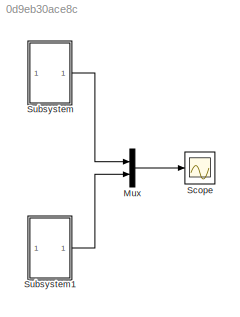
MODEL slx_0d9eb30ace8c
KIND model
CONFIG AbsTol = auto
CONFIG EnableMultiTasking = off
CONFIG FixedStep = auto
CONFIG MaxStep = auto
CONFIG MinStep = auto
CONFIG RelTol = 1e-3
CONFIG SampleTimeConstraint = Unconstrained
CONFIG SolverName = VariableStepAuto
CONFIG StartTime = 0.0
CONFIG StopTime = 0.003
BLOCK [Mux] Mux
  DisplayOption = bar
  Inputs = 2
BLOCK [Scope] Scope
  Floating = off
  NumInputPorts = 1
  ScopeSpecificationString = Simulink.scopes.TimeScopeBlockCfg('CurrentConfiguration', extmgr.ConfigurationSet(extmgr.Configuration('Core','General UI',true),extmgr.Configuration('Core','Source UI',true),extmgr.Configuration('Sources','WiredSimulink',true),extmgr.Configuration('Visuals','Time Domain',true,'SerializedDisplays',{struct('MinYLimReal','-0.45118','MaxYLimReal','4.06059','YLabelReal','','MinYLimMag','0.00000','MaxY...<+1402ch>
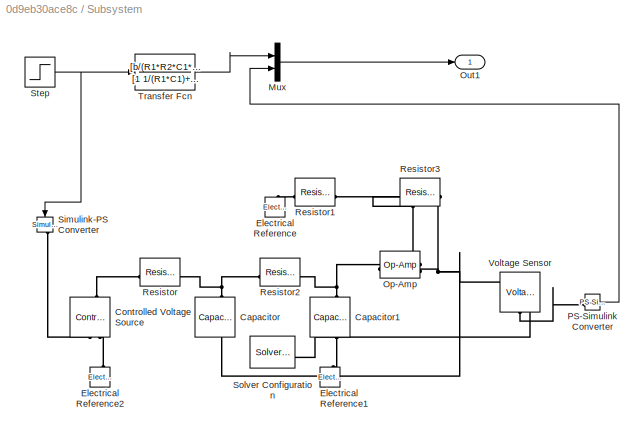
BLOCK [SubSystem] Subsystem
BLOCK [Reference] Subsystem/Capacitor  REF=fl_lib/Electrical/Electrical Elements/Capacitor
  NameLocation = right
  SourceBlock = fl_lib/Electrical/Electrical Elements/Capacitor
  SourceType = Capacitor
BLOCK [Reference] Subsystem/Capacitor1  REF=fl_lib/Electrical/Electrical Elements/Capacitor
  NameLocation = left
  SourceBlock = fl_lib/Electrical/Electrical Elements/Capacitor
  SourceType = Capacitor
BLOCK [Reference] Subsystem/Controlled Voltage Source  REF=fl_lib/Electrical/Electrical Sources/Controlled Voltage
Source
  NameLocation = right
  SourceBlock = fl_lib/Electrical/Electrical Sources/Controlled Voltage\nSource
  SourceType = Controlled Voltage\nSource
BLOCK [Reference] Subsystem/Electrical Reference  REF=fl_lib/Electrical/Electrical Elements/Electrical Reference
  NameLocation = right
  SourceBlock = fl_lib/Electrical/Electrical Elements/Electrical Reference
  SourceType = Electrical Reference
BLOCK [Reference] Subsystem/Electrical Reference1  REF=fl_lib/Electrical/Electrical Elements/Electrical Reference
  NameLocation = right
  SourceBlock = fl_lib/Electrical/Electrical Elements/Electrical Reference
  SourceType = Electrical Reference
BLOCK [Reference] Subsystem/Electrical Reference2  REF=fl_lib/Electrical/Electrical Elements/Electrical Reference
  NameLocation = right
  SourceBlock = fl_lib/Electrical/Electrical Elements/Electrical Reference
  SourceType = Electrical Reference
BLOCK [Mux] Subsystem/Mux
  DisplayOption = bar
  Inputs = 2
BLOCK [Reference] Subsystem/Op-Amp  REF=fl_lib/Electrical/Electrical Elements/Op-Amp
  SourceBlock = fl_lib/Electrical/Electrical Elements/Op-Amp
  SourceType = Op-Amp
BLOCK [Outport] Subsystem/Out1
BLOCK [Reference] Subsystem/PS-Simulink Converter  REF=nesl_utility/PS-Simulink
Converter
  SourceBlock = nesl_utility/PS-Simulink\nConverter
  SourceType = PS-Simulink\nConverter
BLOCK [Reference] Subsystem/Resistor  REF=fl_lib/Electrical/Electrical Elements/Resistor
  SourceBlock = fl_lib/Electrical/Electrical Elements/Resistor
  SourceType = Resistor
BLOCK [Reference] Subsystem/Resistor1  REF=fl_lib/Electrical/Electrical Elements/Resistor
  SourceBlock = fl_lib/Electrical/Electrical Elements/Resistor
  SourceType = Resistor
BLOCK [Reference] Subsystem/Resistor2  REF=fl_lib/Electrical/Electrical Elements/Resistor
  SourceBlock = fl_lib/Electrical/Electrical Elements/Resistor
  SourceType = Resistor
BLOCK [Reference] Subsystem/Resistor3  REF=fl_lib/Electrical/Electrical Elements/Resistor
  SourceBlock = fl_lib/Electrical/Electrical Elements/Resistor
  SourceType = Resistor
BLOCK [Reference] Subsystem/Simulink-PS Converter  REF=nesl_utility/Simulink-PS
Converter
  NameLocation = left
  SourceBlock = nesl_utility/Simulink-PS\nConverter
  SourceType = Simulink-PS\nConverter
BLOCK [Reference] Subsystem/Solver Configuration  REF=nesl_utility/Solver
Configuration
  SourceBlock = nesl_utility/Solver\nConfiguration
  SourceType = Solver\nConfiguration
BLOCK [Step] Subsystem/Step
  Before = 1
  SampleTime = 0
  Time = 0
BLOCK [TransferFcn] Subsystem/Transfer Fcn
  Denominator = [1 1/(R1*C1)+(1-b)/(R2*C2)+1/(R2*C1) 1/(R1*R2*C1*C2)]
  Numerator = [b/(R1*R2*C1*C2)]
BLOCK [Reference] Subsystem/Voltage Sensor  REF=fl_lib/Electrical/Electrical Sensors/Voltage Sensor
  NameLocation = right
  SourceBlock = fl_lib/Electrical/Electrical Sensors/Voltage Sensor
  SourceType = Voltage Sensor
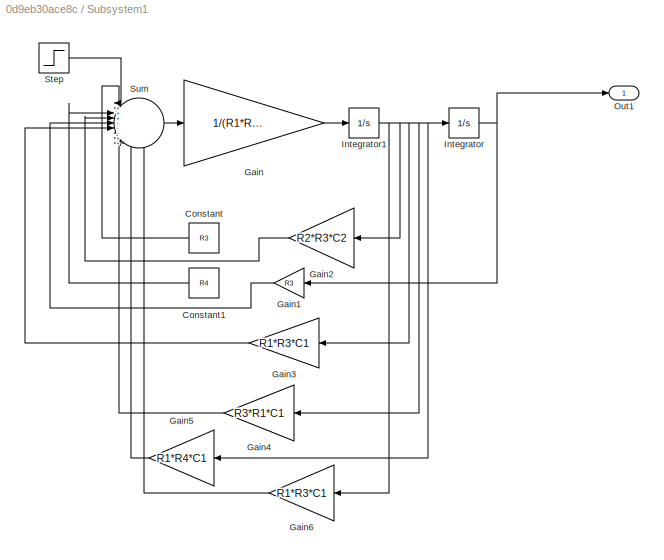
BLOCK [SubSystem] Subsystem1
BLOCK [Constant] Subsystem1/Constant
  NameLocation = top
  Value = R3
BLOCK [Constant] Subsystem1/Constant1
  NameLocation = top
  Value = R4
BLOCK [Gain] Subsystem1/Gain
  Gain = 1/(R1*R2*R3*C1*C2)
BLOCK [Gain] Subsystem1/Gain1
  Gain = R3
  NameLocation = top
BLOCK [Gain] Subsystem1/Gain2
  Gain = R2*R3*C2
  NameLocation = top
BLOCK [Gain] Subsystem1/Gain3
  Gain = R1*R3*C1
  NameLocation = top
BLOCK [Gain] Subsystem1/Gain4
  Gain = R3*R1*C1
  NameLocation = top
BLOCK [Gain] Subsystem1/Gain5
  Gain = R1*R4*C1
  NameLocation = top
BLOCK [Gain] Subsystem1/Gain6
  Gain = R1*R3*C1
  NameLocation = top
BLOCK [Integrator] Subsystem1/Integrator
BLOCK [Integrator] Subsystem1/Integrator1
BLOCK [Outport] Subsystem1/Out1
BLOCK [Step] Subsystem1/Step
  Before = 1
  SampleTime = 0
  Time = 0
BLOCK [Sum] Subsystem1/Sum
  Inputs = |+++---++-
LINE Mux:1 -> Scope:1
LINE Subsystem/Mux:1 -> Subsystem/Out1:1
LINE Subsystem/PS-Simulink Converter:1 -> Subsystem/Mux:2
NET Subsystem/Step:1 -> Subsystem/Simulink-PS Converter:1, Subsystem/Transfer Fcn:1
LINE Subsystem/Transfer Fcn:1 -> Subsystem/Mux:1
LINE Subsystem1/Constant1:1 -> Subsystem1/Sum:3
LINE Subsystem1/Constant:1 -> Subsystem1/Sum:2
LINE Subsystem1/Gain1:1 -> Subsystem1/Sum:5
LINE Subsystem1/Gain2:1 -> Subsystem1/Sum:4
LINE Subsystem1/Gain3:1 -> Subsystem1/Sum:6
LINE Subsystem1/Gain4:1 -> Subsystem1/Sum:7
LINE Subsystem1/Gain5:1 -> Subsystem1/Sum:8
LINE Subsystem1/Gain6:1 -> Subsystem1/Sum:9
LINE Subsystem1/Gain:1 -> Subsystem1/Integrator1:1
NET Subsystem1/Integrator1:1 -> Subsystem1/Gain2:1, Subsystem1/Gain3:1, Subsystem1/Gain4:1, Subsystem1/Gain5:1, Subsystem1/Gain6:1, Subsystem1/Integrator:1
NET Subsystem1/Integrator:1 -> Subsystem1/Gain1:1, Subsystem1/Out1:1
LINE Subsystem1/Step:1 -> Subsystem1/Sum:1
LINE Subsystem1/Sum:1 -> Subsystem1/Gain:1
LINE Subsystem1:1 -> Mux:2
LINE Subsystem:1 -> Mux:1
PNET net1: Subsystem/Capacitor1:LConn1 -- Subsystem/Op-Amp:LConn1 -- Subsystem/Resistor2:RConn1
PNET net2: Subsystem/Capacitor1:RConn1 -- Subsystem/Electrical Reference1:LConn1 -- Subsystem/Solver Configuration:RConn1 -- Subsystem/Voltage Sensor:RConn2
PNET net3: Subsystem/Capacitor:LConn1 -- Subsystem/Op-Amp:RConn1 -- Subsystem/Resistor3:RConn1 -- Subsystem/Voltage Sensor:LConn1
PNET net4: Subsystem/Capacitor:RConn1 -- Subsystem/Resistor2:LConn1 -- Subsystem/Resistor:RConn1
PLINE Subsystem/Controlled Voltage Source:LConn1 -- Subsystem/Resistor:LConn1
PLINE Subsystem/Controlled Voltage Source:RConn1 -- Subsystem/Simulink-PS Converter:RConn1
PLINE Subsystem/Controlled Voltage Source:RConn2 -- Subsystem/Electrical Reference2:LConn1
PLINE Subsystem/Electrical Reference:LConn1 -- Subsystem/Resistor1:LConn1
PNET net5: Subsystem/Op-Amp:LConn2 -- Subsystem/Resistor1:RConn1 -- Subsystem/Resistor3:LConn1
PLINE Subsystem/PS-Simulink Converter:LConn1 -- Subsystem/Voltage Sensor:RConn1
note: NET lines group one-source signal fan-out (src -> all destinations, sorted); 1:1 wires keep LINE; PNET lines group multi-terminal physical nets as a canonical sorted terminal list (undirected conserving connections); 2-terminal nets keep the pairwise PLINE form
